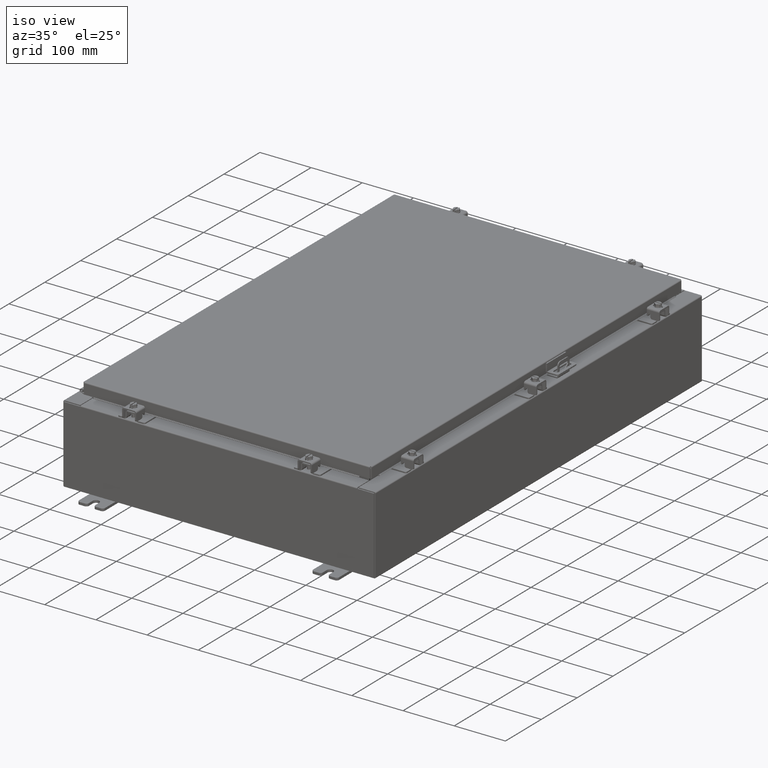
[diagram: clean part render]
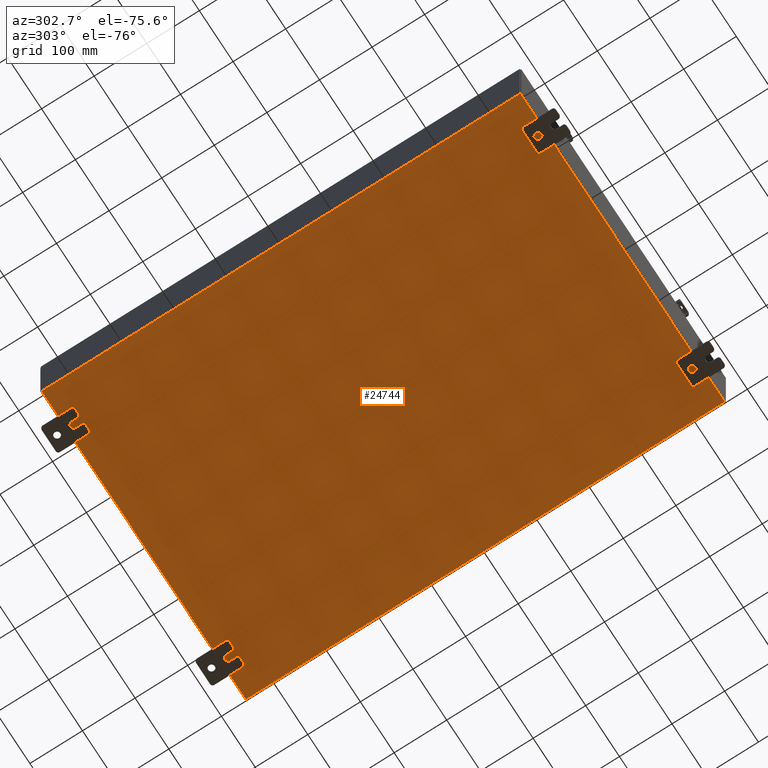
[diagram: tour spotlight — one face highlighted and labeled with its STEP entity id]
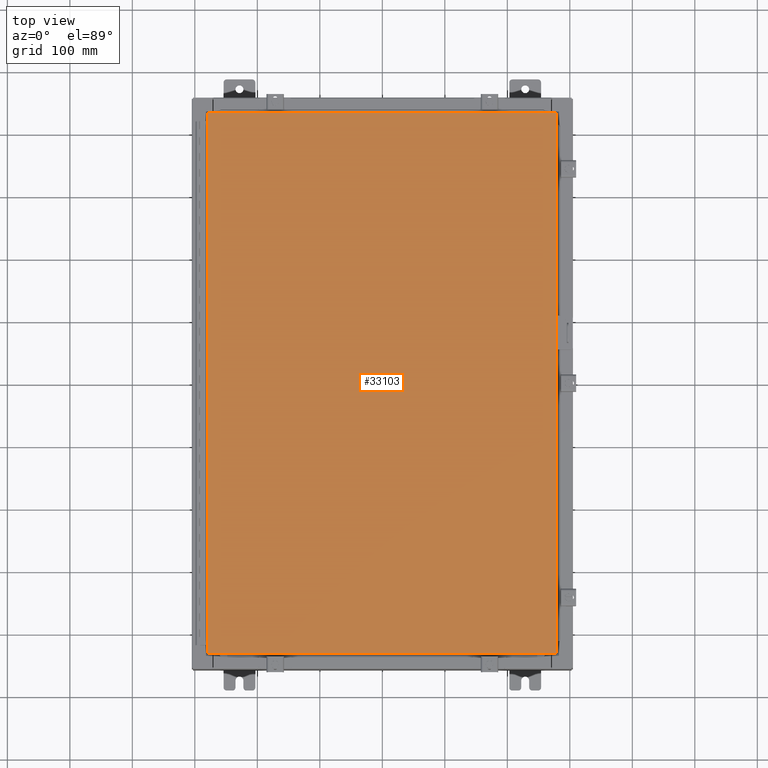
[diagram: tour spotlight — one face highlighted and labeled with its STEP entity id]
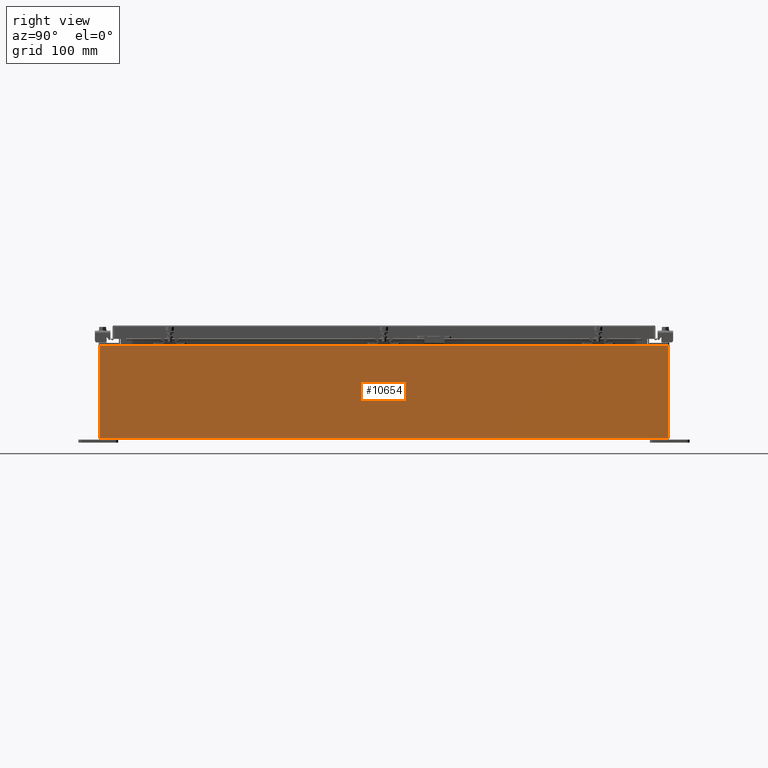
[diagram: tour spotlight — one face highlighted and labeled with its STEP entity id]
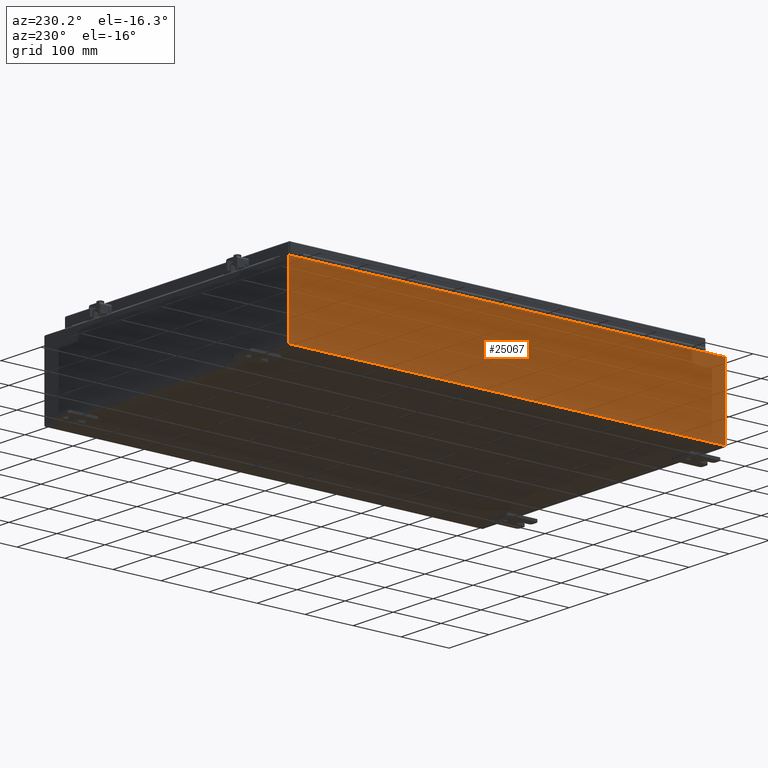
[diagram: tour spotlight — one face highlighted and labeled with its STEP entity id]
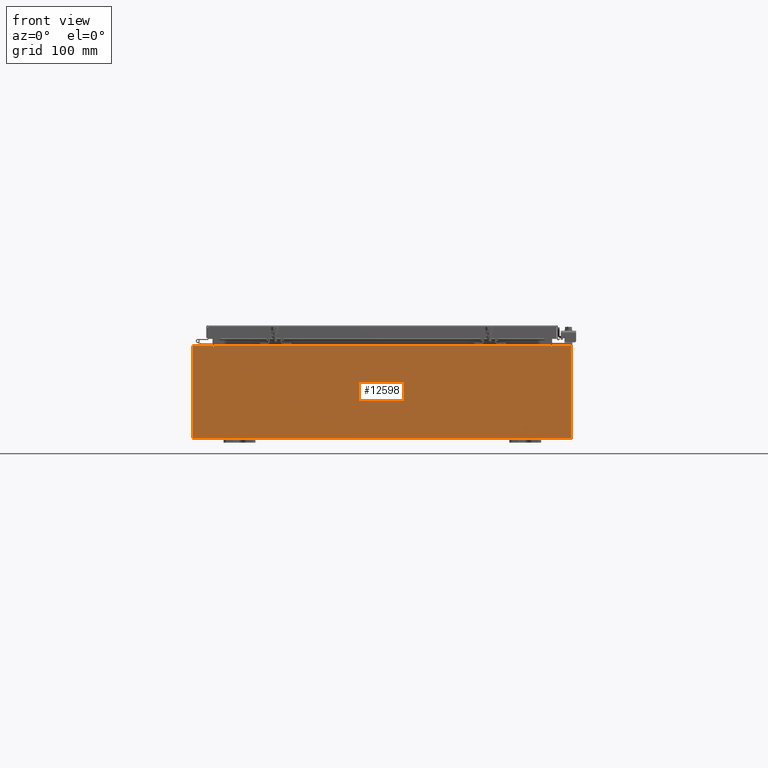
[diagram: tour spotlight — one face highlighted and labeled with its STEP entity id]
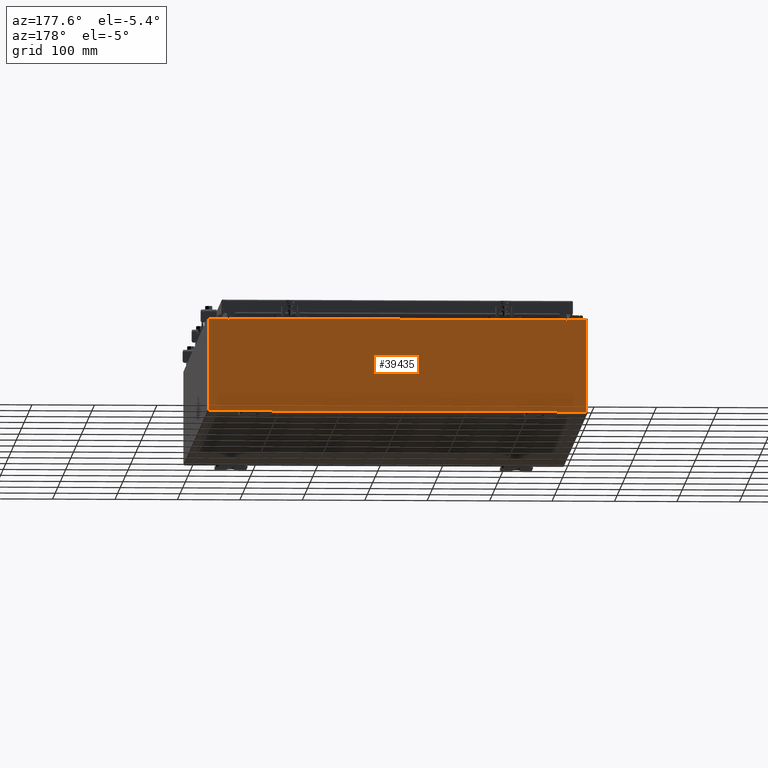
[diagram: tour spotlight — one face highlighted and labeled with its STEP entity id]
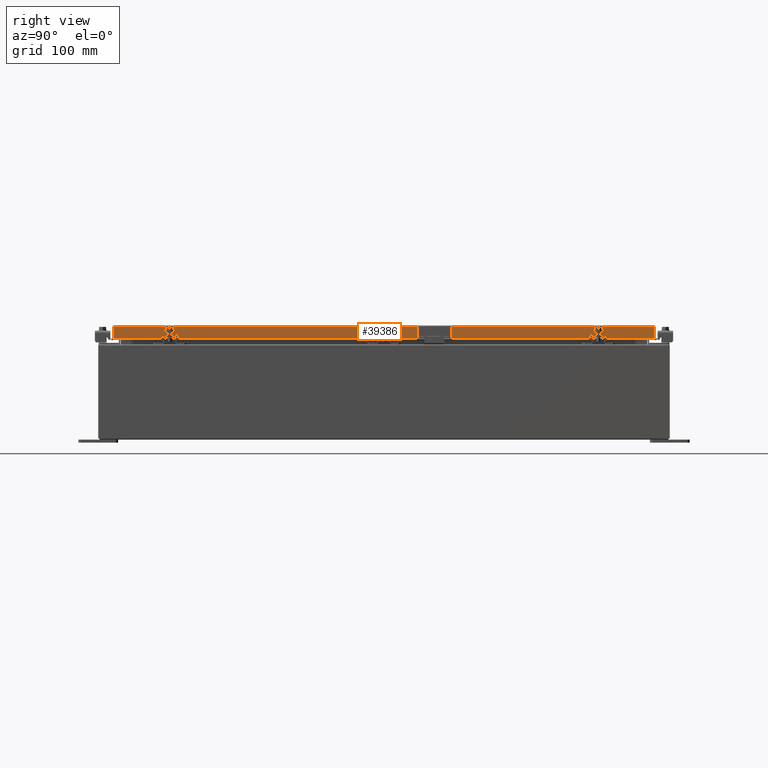
[diagram: tour spotlight — one face highlighted and labeled with its STEP entity id]
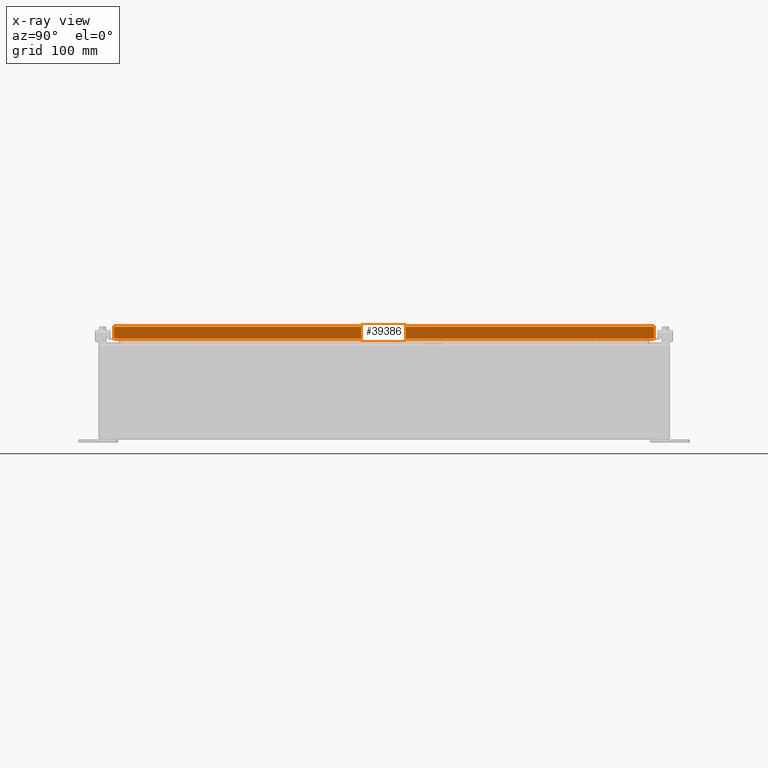
[diagram: x-ray of the same camera — body ghosted, this tour face saturated]
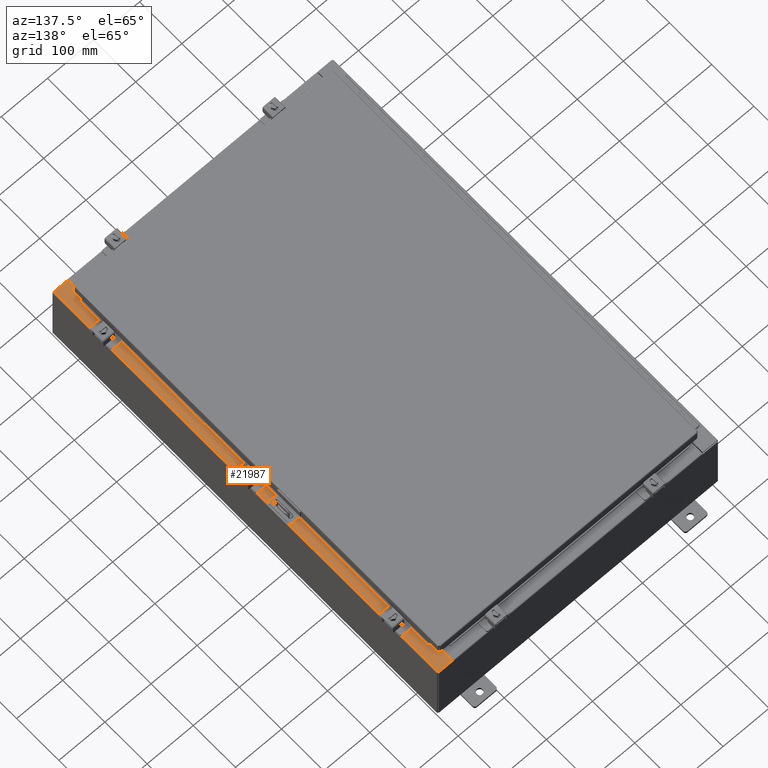
[diagram: tour spotlight — one face highlighted and labeled with its STEP entity id]
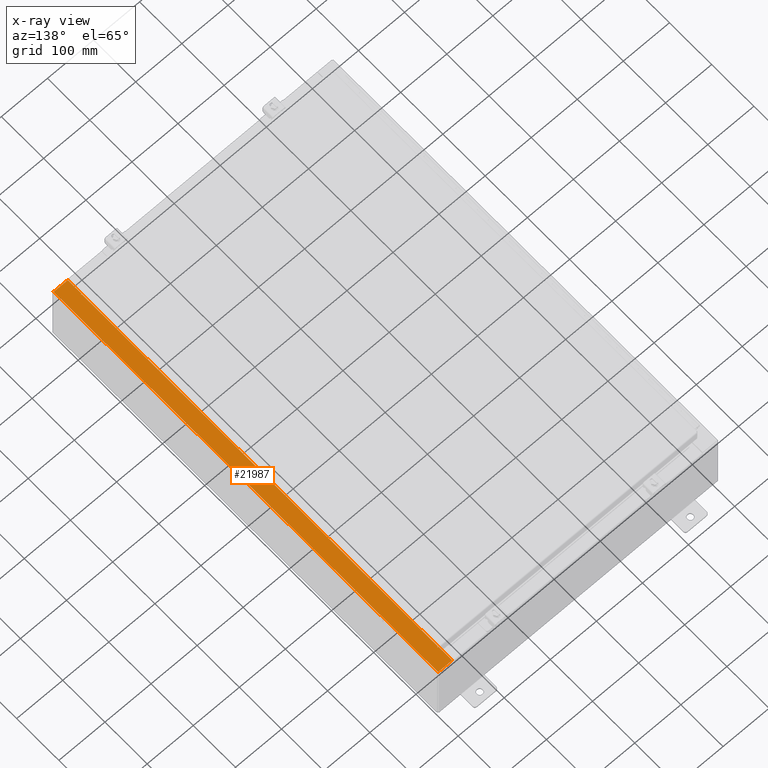
[diagram: x-ray of the same camera — body ghosted, this tour face saturated]
A machine part: a face-by-face anatomy tour. The part has 2210 B-rep faces; the first image is the clean iso view, then the 8 largest visible faces are spotlighted one at a time (largest first), each with its STEP entity span.

Face 1 — auxiliary view, entity #24744. In plain terms, the highlighted planar face has unit normal (0, 0, -1).
Definition (entity closure, byte-faithful):
#1006 = CARTESIAN_POINT ( 'NONE',  ( 11.91230000000000000, 17.92529999999999600, -0.07469999999999885100 ) ) ;
#6571 = CARTESIAN_POINT ( 'NONE',  ( 11.91230000000000000, 17.92529999999999600, -0.07469999999999885100 ) ) ;
#6612 = CARTESIAN_POINT ( 'NONE',  ( 11.91229999999999100, -17.92530000000000400, -0.07470000000000000300 ) ) ;
#7268 = VERTEX_POINT ( 'NONE', #38242 ) ;
#9078 = CARTESIAN_POINT ( 'NONE',  ( 0.0000000000000000000, 0.0000000000000000000, -0.07470000000000000300 ) ) ;
#9370 = DIRECTION ( 'NONE',  ( 0.0000000000000000000, 0.0000000000000000000, -1.000000000000000000 ) ) ;
#9558 = EDGE_CURVE ( 'NONE', #7268, #18556, #28793, .T. ) ;
#9627 = EDGE_CURVE ( 'NONE', #24223, #37639, #24693, .T. ) ;
#11630 = ORIENTED_EDGE ( 'NONE', *, *, #9558, .F. ) ;
#12046 = CARTESIAN_POINT ( 'NONE',  ( -12.00000000000000200, -17.92530000000000400, -0.07470000000000000300 ) ) ;
#14176 = PLANE ( 'NONE',  #31706 ) ;
#14462 = EDGE_LOOP ( 'NONE', ( #11630, #40599, #24168, #17702 ) ) ;
#15183 = DIRECTION ( 'NONE',  ( 1.000000000000000000, 0.0000000000000000000, 0.0000000000000000000 ) ) ;
#16113 = LINE ( 'NONE', #20793, #39114 ) ;
#17193 = EDGE_CURVE ( 'NONE', #24223, #18556, #28892, .T. ) ;
#17702 = ORIENTED_EDGE ( 'NONE', *, *, #17193, .T. ) ;
#18556 = VERTEX_POINT ( 'NONE', #6612 ) ;
#19870 = EDGE_CURVE ( 'NONE', #7268, #37639, #16113, .T. ) ;
#20793 = CARTESIAN_POINT ( 'NONE',  ( -11.91230000000000000, -17.92530000000000400, -0.07469999999999994700 ) ) ;
#22133 = CARTESIAN_POINT ( 'NONE',  ( -12.00000000000000200, 17.92529999999999600, -0.07470000000000000300 ) ) ;
#23180 = DIRECTION ( 'NONE',  ( -1.000000000000000000, -0.0000000000000000000, -0.0000000000000000000 ) ) ;
#24168 = ORIENTED_EDGE ( 'NONE', *, *, #9627, .F. ) ;
#24223 = VERTEX_POINT ( 'NONE', #6571 ) ;
#24297 = VECTOR ( 'NONE', #23180, 39.37007874015748100 ) ;
#24693 = LINE ( 'NONE', #22133, #24297 ) ;
#24744 = ADVANCED_FACE ( 'NONE', ( #35718 ), #14176, .T. ) ;
#27503 = VECTOR ( 'NONE', #15183, 39.37007874015748100 ) ;
#28793 = LINE ( 'NONE', #12046, #27503 ) ;
#28892 = LINE ( 'NONE', #1006, #32690 ) ;
#31332 = DIRECTION ( 'NONE',  ( -0.0000000000000000000, -1.000000000000000000, -0.0000000000000000000 ) ) ;
#31706 = AXIS2_PLACEMENT_3D ( 'NONE', #9078, #9370, #35928 ) ;
#32690 = VECTOR ( 'NONE', #31332, 39.37007874015748100 ) ;
#35718 = FACE_OUTER_BOUND ( 'NONE', #14462, .T. ) ;
#35928 = DIRECTION ( 'NONE',  ( -1.000000000000000000, 0.0000000000000000000, -0.0000000000000000000 ) ) ;
#37639 = VERTEX_POINT ( 'NONE', #42627 ) ;
#38242 = CARTESIAN_POINT ( 'NONE',  ( -11.91230000000000000, -17.92530000000000400, -0.07469999999999994700 ) ) ;
#38750 = DIRECTION ( 'NONE',  ( -0.0000000000000000000, 1.000000000000000000, -0.0000000000000000000 ) ) ;
#39114 = VECTOR ( 'NONE', #38750, 39.37007874015748100 ) ;
#40599 = ORIENTED_EDGE ( 'NONE', *, *, #19870, .T. ) ;
#42627 = CARTESIAN_POINT ( 'NONE',  ( -11.91230000000000000, 17.92529999999999600, -0.07470000000000000300 ) ) ;

Face 2 — top view, entity #33103. In plain terms, the highlighted planar face has unit normal (0, 0, -1).
Definition (entity closure, byte-faithful):
#829 = DIRECTION ( 'NONE',  ( -1.000000000000000000, -0.0000000000000000000, -0.0000000000000000000 ) ) ;
#3289 = VERTEX_POINT ( 'NONE', #8541 ) ;
#3576 = CARTESIAN_POINT ( 'NONE',  ( 10.99029999999999800, 17.00630000000000700, -2.048885995248197400E-016 ) ) ;
#5041 = DIRECTION ( 'NONE',  ( 0.0000000000000000000, 0.0000000000000000000, -1.000000000000000000 ) ) ;
#5778 = VECTOR ( 'NONE', #24230, 39.37007874015748100 ) ;
#7512 = CARTESIAN_POINT ( 'NONE',  ( 10.99029999999999800, 17.00630000000000700, -2.048885995248197400E-016 ) ) ;
#7973 = AXIS2_PLACEMENT_3D ( 'NONE', #37892, #5041, #28054 ) ;
#8541 = CARTESIAN_POINT ( 'NONE',  ( 10.99029999999999600, -17.00629999999999200, -2.048885995248197400E-016 ) ) ;
#11119 = DIRECTION ( 'NONE',  ( 0.0000000000000000000, 1.000000000000000000, 0.0000000000000000000 ) ) ;
#11429 = DIRECTION ( 'NONE',  ( 0.0000000000000000000, -1.000000000000000000, 0.0000000000000000000 ) ) ;
#11764 = VERTEX_POINT ( 'NONE', #38637 ) ;
#11875 = ORIENTED_EDGE ( 'NONE', *, *, #18634, .T. ) ;
#12093 = VERTEX_POINT ( 'NONE', #3576 ) ;
#14240 = CARTESIAN_POINT ( 'NONE',  ( -10.99030000000000000, -17.00629999999999600, 8.878505979408856000E-016 ) ) ;
#18634 = EDGE_CURVE ( 'NONE', #25031, #3289, #34046, .T. ) ;
#19269 = VECTOR ( 'NONE', #11429, 39.37007874015748100 ) ;
#20294 = LINE ( 'NONE', #24301, #19269 ) ;
#20979 = EDGE_CURVE ( 'NONE', #3289, #12093, #33123, .T. ) ;
#21486 = FACE_OUTER_BOUND ( 'NONE', #26720, .T. ) ;
#23540 = VECTOR ( 'NONE', #829, 39.37007874015748100 ) ;
#24230 = DIRECTION ( 'NONE',  ( 1.000000000000000000, -0.0000000000000000000, -0.0000000000000000000 ) ) ;
#24301 = CARTESIAN_POINT ( 'NONE',  ( -10.99030000000000500, 17.00630000000000700, -3.483106191921935600E-015 ) ) ;
#24726 = PLANE ( 'NONE',  #7973 ) ;
#25031 = VERTEX_POINT ( 'NONE', #14240 ) ;
#26720 = EDGE_LOOP ( 'NONE', ( #11875, #31440, #29303, #26990 ) ) ;
#26990 = ORIENTED_EDGE ( 'NONE', *, *, #42470, .T. ) ;
#27952 = CARTESIAN_POINT ( 'NONE',  ( -10.99030000000000000, -17.00629999999999600, 8.878505979408856000E-016 ) ) ;
#28054 = DIRECTION ( 'NONE',  ( -1.000000000000000000, 0.0000000000000000000, -0.0000000000000000000 ) ) ;
#29303 = ORIENTED_EDGE ( 'NONE', *, *, #33027, .T. ) ;
#31070 = CARTESIAN_POINT ( 'NONE',  ( 10.99029999999999600, -17.00629999999999200, -2.048885995248197400E-016 ) ) ;
#31440 = ORIENTED_EDGE ( 'NONE', *, *, #20979, .T. ) ;
#33027 = EDGE_CURVE ( 'NONE', #12093, #11764, #33243, .T. ) ;
#33103 = ADVANCED_FACE ( 'NONE', ( #21486 ), #24726, .F. ) ;
#33123 = LINE ( 'NONE', #31070, #37737 ) ;
#33243 = LINE ( 'NONE', #7512, #23540 ) ;
#34046 = LINE ( 'NONE', #27952, #5778 ) ;
#37737 = VECTOR ( 'NONE', #11119, 39.37007874015748100 ) ;
#37892 = CARTESIAN_POINT ( 'NONE',  ( 0.0000000000000000000, 0.0000000000000000000, 0.0000000000000000000 ) ) ;
#38637 = CARTESIAN_POINT ( 'NONE',  ( -10.99030000000000500, 17.00630000000000700, -3.483106191921935600E-015 ) ) ;
#42470 = EDGE_CURVE ( 'NONE', #11764, #25031, #20294, .T. ) ;

Face 3 — right view, entity #10654. In plain terms, the highlighted planar face has unit normal (-1, 0, 0).
Definition (entity closure, byte-faithful):
#573 = VECTOR ( 'NONE', #34278, 39.37007874015748100 ) ;
#2578 = ORIENTED_EDGE ( 'NONE', *, *, #11067, .T. ) ;
#2586 = ORIENTED_EDGE ( 'NONE', *, *, #21550, .T. ) ;
#7472 = LINE ( 'NONE', #10014, #573 ) ;
#9693 = EDGE_CURVE ( 'NONE', #41324, #9951, #7472, .T. ) ;
#9951 = VERTEX_POINT ( 'NONE', #20863 ) ;
#10014 = CARTESIAN_POINT ( 'NONE',  ( 12.00000000000000200, 17.92529999999999600, -4.009536492811464800E-014 ) ) ;
#10654 = ADVANCED_FACE ( 'NONE', ( #14635 ), #42233, .F. ) ;
#11067 = EDGE_CURVE ( 'NONE', #38027, #23221, #42629, .T. ) ;
#11687 = CARTESIAN_POINT ( 'NONE',  ( 12.00000000000002100, -17.92530000000000000, 5.837600000000001000 ) ) ;
#12805 = LINE ( 'NONE', #23617, #34899 ) ;
#14004 = ORIENTED_EDGE ( 'NONE', *, *, #35465, .F. ) ;
#14635 = FACE_OUTER_BOUND ( 'NONE', #41359, .T. ) ;
#15163 = CARTESIAN_POINT ( 'NONE',  ( 12.00000000000000200, 17.92529999999999600, 0.01300000000000205000 ) ) ;
#20361 = VECTOR ( 'NONE', #30296, 39.37007874015748100 ) ;
#20423 = VECTOR ( 'NONE', #29426, 39.37007874015748100 ) ;
#20863 = CARTESIAN_POINT ( 'NONE',  ( 12.00000000000002100, 17.92530000000000000, 5.837600000000001000 ) ) ;
#21275 = DIRECTION ( 'NONE',  ( -0.0000000000000000000, -1.000000000000000000, -0.0000000000000000000 ) ) ;
#21550 = EDGE_CURVE ( 'NONE', #9951, #38027, #12805, .T. ) ;
#23221 = VERTEX_POINT ( 'NONE', #34125 ) ;
#23617 = CARTESIAN_POINT ( 'NONE',  ( 12.00000000000002100, 17.92530000000000000, 5.837600000000001000 ) ) ;
#28094 = AXIS2_PLACEMENT_3D ( 'NONE', #42365, #41223, #41256 ) ;
#28114 = LINE ( 'NONE', #39375, #20423 ) ;
#28783 = ORIENTED_EDGE ( 'NONE', *, *, #9693, .T. ) ;
#29426 = DIRECTION ( 'NONE',  ( -2.023619111371655800E-031, -1.000000000000000000, -6.096072018129156600E-017 ) ) ;
#30296 = DIRECTION ( 'NONE',  ( -3.319545939341922800E-015, 0.0000000000000000000, -1.000000000000000000 ) ) ;
#30489 = CARTESIAN_POINT ( 'NONE',  ( 12.00000000000000200, -17.92530000000000400, -4.009536492811464800E-014 ) ) ;
#34125 = CARTESIAN_POINT ( 'NONE',  ( 12.00000000000000200, -17.92530000000000400, 0.01300000000000095200 ) ) ;
#34278 = DIRECTION ( 'NONE',  ( 3.319545939341922800E-015, 0.0000000000000000000, 1.000000000000000000 ) ) ;
#34899 = VECTOR ( 'NONE', #21275, 39.37007874015748100 ) ;
#35465 = EDGE_CURVE ( 'NONE', #41324, #23221, #28114, .T. ) ;
#38027 = VERTEX_POINT ( 'NONE', #11687 ) ;
#39375 = CARTESIAN_POINT ( 'NONE',  ( 12.00000000000000200, -17.92530000000000400, 0.01299999999999986400 ) ) ;
#41223 = DIRECTION ( 'NONE',  ( -1.000000000000000000, 0.0000000000000000000, 3.319545939341922000E-015 ) ) ;
#41256 = DIRECTION ( 'NONE',  ( 3.319545939341922000E-015, 0.0000000000000000000, 1.000000000000000000 ) ) ;
#41324 = VERTEX_POINT ( 'NONE', #15163 ) ;
#41359 = EDGE_LOOP ( 'NONE', ( #2586, #2578, #14004, #28783 ) ) ;
#42233 = PLANE ( 'NONE',  #28094 ) ;
#42365 = CARTESIAN_POINT ( 'NONE',  ( 12.00000000000000200, 0.0000000000000000000, -4.009536492811464800E-014 ) ) ;
#42629 = LINE ( 'NONE', #30489, #20361 ) ;

Face 4 — auxiliary view, entity #25067. In plain terms, the highlighted planar face has unit normal (1, 0, 0).
Definition (entity closure, byte-faithful):
#58 = EDGE_LOOP ( 'NONE', ( #37076, #4828, #8268, #21557 ) ) ;
#3659 = VECTOR ( 'NONE', #9107, 39.37007874015748100 ) ;
#3842 = DIRECTION ( 'NONE',  ( -0.0000000000000000000, 1.000000000000000000, -0.0000000000000000000 ) ) ;
#4111 = VECTOR ( 'NONE', #24432, 39.37007874015748100 ) ;
#4368 = DIRECTION ( 'NONE',  ( 1.000000000000000000, 0.0000000000000000000, 3.319545939341922800E-015 ) ) ;
#4828 = ORIENTED_EDGE ( 'NONE', *, *, #22271, .T. ) ;
#7034 = CARTESIAN_POINT ( 'NONE',  ( -12.00000000000000200, 17.92529999999999600, 0.01299999999999986400 ) ) ;
#8268 = ORIENTED_EDGE ( 'NONE', *, *, #37752, .F. ) ;
#8946 = CARTESIAN_POINT ( 'NONE',  ( -12.00000000000000200, -17.92530000000000400, -4.009536492811464800E-014 ) ) ;
#9107 = DIRECTION ( 'NONE',  ( -3.319545939341922800E-015, 0.0000000000000000000, 1.000000000000000000 ) ) ;
#9898 = EDGE_CURVE ( 'NONE', #33036, #19318, #28826, .T. ) ;
#10260 = EDGE_CURVE ( 'NONE', #38929, #33036, #27739, .T. ) ;
#11313 = CARTESIAN_POINT ( 'NONE',  ( -12.00000000000002100, -17.92530000000000400, 5.837599999999999200 ) ) ;
#12423 = VECTOR ( 'NONE', #15731, 39.37007874015748100 ) ;
#14953 = DIRECTION ( 'NONE',  ( 3.319545939341922800E-015, 0.0000000000000000000, -1.000000000000000000 ) ) ;
#15731 = DIRECTION ( 'NONE',  ( 3.319545939341922800E-015, 0.0000000000000000000, -1.000000000000000000 ) ) ;
#16468 = CARTESIAN_POINT ( 'NONE',  ( -12.00000000000000200, 17.92529999999999600, -4.009536492811464800E-014 ) ) ;
#17157 = VECTOR ( 'NONE', #3842, 39.37007874015748100 ) ;
#18534 = LINE ( 'NONE', #16468, #12423 ) ;
#19318 = VERTEX_POINT ( 'NONE', #26913 ) ;
#21557 = ORIENTED_EDGE ( 'NONE', *, *, #10260, .T. ) ;
#22271 = EDGE_CURVE ( 'NONE', #19318, #36749, #18534, .T. ) ;
#22395 = AXIS2_PLACEMENT_3D ( 'NONE', #25420, #4368, #14953 ) ;
#23909 = CARTESIAN_POINT ( 'NONE',  ( -12.00000000000002100, -17.92530000000000400, 5.837599999999999200 ) ) ;
#24432 = DIRECTION ( 'NONE',  ( 0.0000000000000000000, 1.000000000000000000, 0.0000000000000000000 ) ) ;
#25067 = ADVANCED_FACE ( 'NONE', ( #35762 ), #38549, .F. ) ;
#25420 = CARTESIAN_POINT ( 'NONE',  ( -12.00000000000000200, 0.0000000000000000000, -4.009536492811464800E-014 ) ) ;
#25833 = LINE ( 'NONE', #7034, #17157 ) ;
#26913 = CARTESIAN_POINT ( 'NONE',  ( -12.00000000000002100, 17.92529999999999600, 5.837599999999999200 ) ) ;
#27618 = CARTESIAN_POINT ( 'NONE',  ( -12.00000000000000200, 17.92529999999999600, 0.01299999999999985900 ) ) ;
#27739 = LINE ( 'NONE', #8946, #3659 ) ;
#28826 = LINE ( 'NONE', #11313, #4111 ) ;
#33036 = VERTEX_POINT ( 'NONE', #23909 ) ;
#35762 = FACE_OUTER_BOUND ( 'NONE', #58, .T. ) ;
#36749 = VERTEX_POINT ( 'NONE', #27618 ) ;
#37076 = ORIENTED_EDGE ( 'NONE', *, *, #9898, .T. ) ;
#37752 = EDGE_CURVE ( 'NONE', #38929, #36749, #25833, .T. ) ;
#38549 = PLANE ( 'NONE',  #22395 ) ;
#38929 = VERTEX_POINT ( 'NONE', #38947 ) ;
#38947 = CARTESIAN_POINT ( 'NONE',  ( -12.00000000000000200, -17.92530000000000400, 0.01299999999999986400 ) ) ;

Face 5 — front view, entity #12598. In plain terms, the highlighted planar face has unit normal (-0, 1, -0).
Definition (entity closure, byte-faithful):
#93 = ORIENTED_EDGE ( 'NONE', *, *, #21419, .F. ) ;
#513 = EDGE_CURVE ( 'NONE', #23962, #17599, #36454, .T. ) ;
#1476 = CARTESIAN_POINT ( 'NONE',  ( -11.92530000000000000, 0.0000000000000000000, 2.925300000000000500 ) ) ;
#1503 = EDGE_CURVE ( 'NONE', #7274, #26329, #41527, .T. ) ;
#1679 = CARTESIAN_POINT ( 'NONE',  ( 10.63720000000000400, 0.0000000000000000000, 0.0000000000000000000 ) ) ;
#2926 = DIRECTION ( 'NONE',  ( 1.000000000000000000, 0.0000000000000000000, 0.0000000000000000000 ) ) ;
#2946 = DIRECTION ( 'NONE',  ( -4.340572780400004900E-014, 0.0000000000000000000, -1.000000000000000000 ) ) ;
#3123 = CIRCLE ( 'NONE', #34839, 0.01867499999999949400 ) ;
#3890 = EDGE_CURVE ( 'NONE', #17599, #42417, #40922, .T. ) ;
#3924 = EDGE_CURVE ( 'NONE', #42417, #12419, #6290, .T. ) ;
#4340 = FACE_OUTER_BOUND ( 'NONE', #14956, .T. ) ;
#4485 = ORIENTED_EDGE ( 'NONE', *, *, #21254, .T. ) ;
#5640 = ORIENTED_EDGE ( 'NONE', *, *, #8983, .F. ) ;
#5648 = EDGE_CURVE ( 'NONE', #40485, #34425, #41163, .T. ) ;
#6071 = ORIENTED_EDGE ( 'NONE', *, *, #3890, .T. ) ;
#6290 = LINE ( 'NONE', #1476, #17759 ) ;
#6477 = AXIS2_PLACEMENT_3D ( 'NONE', #6906, #12233, #41385 ) ;
#6753 = CIRCLE ( 'NONE', #6477, 0.01867499999999949400 ) ;
#6906 = CARTESIAN_POINT ( 'NONE',  ( 10.65587500000000200, 0.0000000000000000000, 2.874950000000000600 ) ) ;
#7274 = VERTEX_POINT ( 'NONE', #38139 ) ;
#7520 = CARTESIAN_POINT ( 'NONE',  ( -10.65587500000000200, 0.0000000000000000000, 2.874950000000000600 ) ) ;
#7889 = CARTESIAN_POINT ( 'NONE',  ( -10.63720000000000400, -0.0000000000000000000, 2.874950000000000600 ) ) ;
#7998 = ORIENTED_EDGE ( 'NONE', *, *, #1503, .F. ) ;
#8309 = VECTOR ( 'NONE', #2946, 39.37007874015748100 ) ;
#8889 = VECTOR ( 'NONE', #2926, 39.37007874015748100 ) ;
#8983 = EDGE_CURVE ( 'NONE', #11201, #12419, #12595, .T. ) ;
#10052 = PLANE ( 'NONE',  #28205 ) ;
#11201 = VERTEX_POINT ( 'NONE', #25275 ) ;
#12233 = DIRECTION ( 'NONE',  ( -0.0000000000000000000, 1.000000000000000000, -0.0000000000000000000 ) ) ;
#12419 = VERTEX_POINT ( 'NONE', #42604 ) ;
#12595 = LINE ( 'NONE', #14874, #14139 ) ;
#12598 = ADVANCED_FACE ( 'NONE', ( #4340 ), #10052, .F. ) ;
#12775 = CARTESIAN_POINT ( 'NONE',  ( 11.92530000000000000, 0.0000000000000000000, -2.925299999999999600 ) ) ;
#13294 = VERTEX_POINT ( 'NONE', #16031 ) ;
#13601 = DIRECTION ( 'NONE',  ( 0.0000000000000000000, 0.0000000000000000000, -1.000000000000000000 ) ) ;
#14139 = VECTOR ( 'NONE', #40179, 39.37007874015748100 ) ;
#14284 = ORIENTED_EDGE ( 'NONE', *, *, #29317, .F. ) ;
#14309 = CARTESIAN_POINT ( 'NONE',  ( -11.92530000000000000, 0.0000000000000000000, 2.925300000000000500 ) ) ;
#14524 = LINE ( 'NONE', #19912, #40646 ) ;
#14871 = CARTESIAN_POINT ( 'NONE',  ( 10.63720000000000400, 0.0000000000000000000, 2.912300000000000600 ) ) ;
#14874 = CARTESIAN_POINT ( 'NONE',  ( -10.67455000000000200, -0.0000000000000000000, 0.0000000000000000000 ) ) ;
#14956 = EDGE_LOOP ( 'NONE', ( #5640, #33826, #7998, #4485, #14284, #30170, #93, #18536, #32032, #20956, #6071, #27159 ) ) ;
#15318 = VERTEX_POINT ( 'NONE', #20015 ) ;
#15628 = DIRECTION ( 'NONE',  ( 0.0000000000000000000, 0.0000000000000000000, -1.000000000000000000 ) ) ;
#15892 = VECTOR ( 'NONE', #34466, 39.37007874015748100 ) ;
#16031 = CARTESIAN_POINT ( 'NONE',  ( 10.63720000000000400, 0.0000000000000000000, 2.874950000000000600 ) ) ;
#17599 = VERTEX_POINT ( 'NONE', #18158 ) ;
#17691 = DIRECTION ( 'NONE',  ( -0.0000000000000000000, -0.0000000000000000000, 1.000000000000000000 ) ) ;
#17759 = VECTOR ( 'NONE', #32569, 39.37007874015748100 ) ;
#18158 = CARTESIAN_POINT ( 'NONE',  ( -11.92530000000000000, 0.0000000000000000000, -2.925299999999999600 ) ) ;
#18536 = ORIENTED_EDGE ( 'NONE', *, *, #5648, .T. ) ;
#19144 = LINE ( 'NONE', #35124, #20174 ) ;
#19912 = CARTESIAN_POINT ( 'NONE',  ( -10.63720000000000400, 1.024442997624098700E-016, 2.912300000000000600 ) ) ;
#20015 = CARTESIAN_POINT ( 'NONE',  ( 10.67455000000000200, 0.0000000000000000000, 2.874950000000000600 ) ) ;
#20044 = CARTESIAN_POINT ( 'NONE',  ( -10.63720000000000400, -0.0000000000000000000, 0.0000000000000000000 ) ) ;
#20174 = VECTOR ( 'NONE', #13601, 39.37007874015748100 ) ;
#20757 = DIRECTION ( 'NONE',  ( 0.0000000000000000000, -1.000000000000000000, 0.0000000000000000000 ) ) ;
#20956 = ORIENTED_EDGE ( 'NONE', *, *, #513, .T. ) ;
#20980 = EDGE_CURVE ( 'NONE', #15318, #13294, #6753, .T. ) ;
#21100 = EDGE_CURVE ( 'NONE', #26329, #11201, #3123, .T. ) ;
#21254 = EDGE_CURVE ( 'NONE', #7274, #41253, #14524, .T. ) ;
#21419 = EDGE_CURVE ( 'NONE', #40485, #15318, #24305, .T. ) ;
#23330 = CARTESIAN_POINT ( 'NONE',  ( 10.67454999999987700, -0.0000000000000000000, -4.633366117301834200E-013 ) ) ;
#23962 = VERTEX_POINT ( 'NONE', #12775 ) ;
#24305 = LINE ( 'NONE', #23330, #8309 ) ;
#25275 = CARTESIAN_POINT ( 'NONE',  ( -10.67455000000000200, 0.0000000000000000000, 2.874950000000000600 ) ) ;
#25286 = VECTOR ( 'NONE', #28926, 39.37007874015748100 ) ;
#25677 = DIRECTION ( 'NONE',  ( 1.000000000000000000, 0.0000000000000000000, 0.0000000000000000000 ) ) ;
#26216 = VECTOR ( 'NONE', #26904, 39.37007874015748100 ) ;
#26329 = VERTEX_POINT ( 'NONE', #7889 ) ;
#26904 = DIRECTION ( 'NONE',  ( 0.0000000000000000000, 0.0000000000000000000, -1.000000000000000000 ) ) ;
#27159 = ORIENTED_EDGE ( 'NONE', *, *, #3924, .T. ) ;
#27631 = CARTESIAN_POINT ( 'NONE',  ( 11.92530000000000000, 0.0000000000000000000, 2.925300000000000500 ) ) ;
#28205 = AXIS2_PLACEMENT_3D ( 'NONE', #39189, #20757, #36503 ) ;
#28261 = VECTOR ( 'NONE', #17691, 39.37007874015748100 ) ;
#28926 = DIRECTION ( 'NONE',  ( 0.0000000000000000000, 0.0000000000000000000, 1.000000000000000000 ) ) ;
#29317 = EDGE_CURVE ( 'NONE', #13294, #41253, #33985, .T. ) ;
#29572 = EDGE_CURVE ( 'NONE', #34425, #23962, #19144, .T. ) ;
#30013 = CARTESIAN_POINT ( 'NONE',  ( -11.92530000000000000, 0.0000000000000000000, 2.925300000000000500 ) ) ;
#30170 = ORIENTED_EDGE ( 'NONE', *, *, #20980, .F. ) ;
#30778 = CARTESIAN_POINT ( 'NONE',  ( 10.67455000000000200, 0.0000000000000000000, 2.925300000000000500 ) ) ;
#32032 = ORIENTED_EDGE ( 'NONE', *, *, #29572, .T. ) ;
#32347 = DIRECTION ( 'NONE',  ( -0.0000000000000000000, 1.000000000000000000, -0.0000000000000000000 ) ) ;
#32569 = DIRECTION ( 'NONE',  ( 1.000000000000000000, 0.0000000000000000000, 0.0000000000000000000 ) ) ;
#32723 = CARTESIAN_POINT ( 'NONE',  ( -11.92530000000000000, 0.0000000000000000000, -2.925299999999999600 ) ) ;
#33826 = ORIENTED_EDGE ( 'NONE', *, *, #21100, .F. ) ;
#33985 = LINE ( 'NONE', #1679, #25286 ) ;
#34425 = VERTEX_POINT ( 'NONE', #27631 ) ;
#34466 = DIRECTION ( 'NONE',  ( -1.000000000000000000, -0.0000000000000000000, -0.0000000000000000000 ) ) ;
#34839 = AXIS2_PLACEMENT_3D ( 'NONE', #7520, #32347, #15628 ) ;
#35124 = CARTESIAN_POINT ( 'NONE',  ( 11.92530000000000000, 0.0000000000000000000, 2.925300000000000500 ) ) ;
#35265 = CARTESIAN_POINT ( 'NONE',  ( -11.92530000000000000, 0.0000000000000000000, 2.925300000000000500 ) ) ;
#36454 = LINE ( 'NONE', #32723, #15892 ) ;
#36503 = DIRECTION ( 'NONE',  ( 0.0000000000000000000, -0.0000000000000000000, -1.000000000000000000 ) ) ;
#38139 = CARTESIAN_POINT ( 'NONE',  ( -10.63720000000000400, 1.024442997624098700E-016, 2.912300000000000600 ) ) ;
#39189 = CARTESIAN_POINT ( 'NONE',  ( 0.0000000000000000000, 0.0000000000000000000, 0.0000000000000000000 ) ) ;
#40179 = DIRECTION ( 'NONE',  ( 0.0000000000000000000, 0.0000000000000000000, 1.000000000000000000 ) ) ;
#40485 = VERTEX_POINT ( 'NONE', #30778 ) ;
#40646 = VECTOR ( 'NONE', #25677, 39.37007874015748100 ) ;
#40922 = LINE ( 'NONE', #30013, #28261 ) ;
#41163 = LINE ( 'NONE', #35265, #8889 ) ;
#41253 = VERTEX_POINT ( 'NONE', #14871 ) ;
#41385 = DIRECTION ( 'NONE',  ( 0.0000000000000000000, 0.0000000000000000000, -1.000000000000000000 ) ) ;
#41527 = LINE ( 'NONE', #20044, #26216 ) ;
#42417 = VERTEX_POINT ( 'NONE', #14309 ) ;
#42604 = CARTESIAN_POINT ( 'NONE',  ( -10.67455000000000200, 0.0000000000000000000, 2.925300000000000500 ) ) ;

Face 6 — auxiliary view, entity #39435. In plain terms, the highlighted planar face has unit normal (0, -1, 0).
Definition (entity closure, byte-faithful):
#466 = CARTESIAN_POINT ( 'NONE',  ( -11.92530000000000000, 0.0000000000000000000, -2.925299999999999600 ) ) ;
#594 = EDGE_CURVE ( 'NONE', #4033, #31485, #35432, .T. ) ;
#621 = VECTOR ( 'NONE', #3238, 39.37007874015748100 ) ;
#846 = LINE ( 'NONE', #4197, #34838 ) ;
#868 = VECTOR ( 'NONE', #22628, 39.37007874015748100 ) ;
#1323 = EDGE_CURVE ( 'NONE', #34810, #5791, #32140, .T. ) ;
#1675 = CARTESIAN_POINT ( 'NONE',  ( 10.67454999999987700, -0.0000000000000000000, -4.633366117301834200E-013 ) ) ;
#2631 = CARTESIAN_POINT ( 'NONE',  ( 0.0000000000000000000, 0.0000000000000000000, 0.0000000000000000000 ) ) ;
#2704 = AXIS2_PLACEMENT_3D ( 'NONE', #30485, #10871, #33742 ) ;
#3238 = DIRECTION ( 'NONE',  ( -1.000000000000000000, -0.0000000000000000000, -0.0000000000000000000 ) ) ;
#3463 = VECTOR ( 'NONE', #41704, 39.37007874015748100 ) ;
#3771 = VERTEX_POINT ( 'NONE', #11122 ) ;
#3846 = VECTOR ( 'NONE', #13262, 39.37007874015748100 ) ;
#3876 = CARTESIAN_POINT ( 'NONE',  ( 10.67455000000000200, 0.0000000000000000000, 2.874950000000000600 ) ) ;
#4033 = VERTEX_POINT ( 'NONE', #16033 ) ;
#4120 = CARTESIAN_POINT ( 'NONE',  ( -10.63720000000000400, -0.0000000000000000000, 2.874950000000000600 ) ) ;
#4197 = CARTESIAN_POINT ( 'NONE',  ( -11.92530000000000000, 0.0000000000000000000, 2.925300000000000500 ) ) ;
#5278 = VERTEX_POINT ( 'NONE', #6417 ) ;
#5280 = ORIENTED_EDGE ( 'NONE', *, *, #40734, .F. ) ;
#5791 = VERTEX_POINT ( 'NONE', #4120 ) ;
#6088 = DIRECTION ( 'NONE',  ( 0.0000000000000000000, -0.0000000000000000000, -1.000000000000000000 ) ) ;
#6417 = CARTESIAN_POINT ( 'NONE',  ( 10.63720000000000400, 0.0000000000000000000, 2.874950000000000600 ) ) ;
#7035 = ORIENTED_EDGE ( 'NONE', *, *, #1323, .F. ) ;
#7600 = ORIENTED_EDGE ( 'NONE', *, *, #27706, .T. ) ;
#8413 = ORIENTED_EDGE ( 'NONE', *, *, #36430, .F. ) ;
#9123 = ORIENTED_EDGE ( 'NONE', *, *, #594, .T. ) ;
#9868 = ORIENTED_EDGE ( 'NONE', *, *, #16708, .T. ) ;
#9891 = ORIENTED_EDGE ( 'NONE', *, *, #21683, .T. ) ;
#10007 = ORIENTED_EDGE ( 'NONE', *, *, #22519, .F. ) ;
#10316 = ORIENTED_EDGE ( 'NONE', *, *, #33024, .F. ) ;
#10422 = ORIENTED_EDGE ( 'NONE', *, *, #31954, .T. ) ;
#10871 = DIRECTION ( 'NONE',  ( -0.0000000000000000000, 1.000000000000000000, -0.0000000000000000000 ) ) ;
#11122 = CARTESIAN_POINT ( 'NONE',  ( 10.63720000000000400, 0.0000000000000000000, 2.912300000000000600 ) ) ;
#12368 = EDGE_LOOP ( 'NONE', ( #5280, #10316, #7035, #9868, #8413, #10007, #18084, #7600, #9123, #9891, #25243, #10422 ) ) ;
#13262 = DIRECTION ( 'NONE',  ( 0.0000000000000000000, 0.0000000000000000000, 1.000000000000000000 ) ) ;
#13967 = DIRECTION ( 'NONE',  ( 0.0000000000000000000, 0.0000000000000000000, -1.000000000000000000 ) ) ;
#14668 = LINE ( 'NONE', #22907, #31011 ) ;
#14734 = LINE ( 'NONE', #19776, #3846 ) ;
#14989 = CARTESIAN_POINT ( 'NONE',  ( -11.92530000000000000, 0.0000000000000000000, -2.925299999999999600 ) ) ;
#15320 = VECTOR ( 'NONE', #18294, 39.37007874015748100 ) ;
#16033 = CARTESIAN_POINT ( 'NONE',  ( 11.92530000000000000, 0.0000000000000000000, 2.925300000000000500 ) ) ;
#16130 = CARTESIAN_POINT ( 'NONE',  ( -10.63720000000000400, 1.024442997624098700E-016, 2.912300000000000600 ) ) ;
#16708 = EDGE_CURVE ( 'NONE', #34810, #3771, #16968, .T. ) ;
#16913 = CIRCLE ( 'NONE', #2704, 0.01867499999999949400 ) ;
#16917 = VERTEX_POINT ( 'NONE', #3876 ) ;
#16968 = LINE ( 'NONE', #16130, #868 ) ;
#17183 = DIRECTION ( 'NONE',  ( -0.0000000000000000000, -0.0000000000000000000, 1.000000000000000000 ) ) ;
#17558 = CARTESIAN_POINT ( 'NONE',  ( -11.92530000000000000, 0.0000000000000000000, 2.925300000000000500 ) ) ;
#17875 = CARTESIAN_POINT ( 'NONE',  ( 11.92530000000000000, 0.0000000000000000000, 2.925300000000000500 ) ) ;
#18084 = ORIENTED_EDGE ( 'NONE', *, *, #41277, .F. ) ;
#18294 = DIRECTION ( 'NONE',  ( 0.0000000000000000000, 0.0000000000000000000, -1.000000000000000000 ) ) ;
#18914 = CARTESIAN_POINT ( 'NONE',  ( -10.67455000000000200, 0.0000000000000000000, 2.874950000000000600 ) ) ;
#19776 = CARTESIAN_POINT ( 'NONE',  ( 10.63720000000000400, 0.0000000000000000000, 0.0000000000000000000 ) ) ;
#19977 = LINE ( 'NONE', #38479, #3463 ) ;
#20104 = CARTESIAN_POINT ( 'NONE',  ( -11.92530000000000000, 0.0000000000000000000, 2.925300000000000500 ) ) ;
#21280 = VERTEX_POINT ( 'NONE', #466 ) ;
#21447 = DIRECTION ( 'NONE',  ( -4.340572780400004900E-014, 0.0000000000000000000, -1.000000000000000000 ) ) ;
#21683 = EDGE_CURVE ( 'NONE', #31485, #21280, #28539, .T. ) ;
#21936 = VECTOR ( 'NONE', #21447, 39.37007874015748100 ) ;
#22519 = EDGE_CURVE ( 'NONE', #16917, #5278, #30937, .T. ) ;
#22533 = PLANE ( 'NONE',  #26769 ) ;
#22628 = DIRECTION ( 'NONE',  ( 1.000000000000000000, 0.0000000000000000000, 0.0000000000000000000 ) ) ;
#22907 = CARTESIAN_POINT ( 'NONE',  ( -11.92530000000000000, 0.0000000000000000000, 2.925300000000000500 ) ) ;
#23803 = CARTESIAN_POINT ( 'NONE',  ( -10.67455000000000200, 0.0000000000000000000, 2.925300000000000500 ) ) ;
#24384 = CARTESIAN_POINT ( 'NONE',  ( 11.92530000000000000, 0.0000000000000000000, -2.925299999999999600 ) ) ;
#25217 = VECTOR ( 'NONE', #13967, 39.37007874015748100 ) ;
#25243 = ORIENTED_EDGE ( 'NONE', *, *, #26389, .T. ) ;
#25788 = DIRECTION ( 'NONE',  ( 0.0000000000000000000, -1.000000000000000000, 0.0000000000000000000 ) ) ;
#26167 = CARTESIAN_POINT ( 'NONE',  ( -10.63720000000000400, 1.024442997624098700E-016, 2.912300000000000600 ) ) ;
#26389 = EDGE_CURVE ( 'NONE', #21280, #38379, #34747, .T. ) ;
#26769 = AXIS2_PLACEMENT_3D ( 'NONE', #2631, #25788, #6088 ) ;
#27210 = DIRECTION ( 'NONE',  ( 1.000000000000000000, 0.0000000000000000000, 0.0000000000000000000 ) ) ;
#27706 = EDGE_CURVE ( 'NONE', #34574, #4033, #14668, .T. ) ;
#27741 = DIRECTION ( 'NONE',  ( 1.000000000000000000, 0.0000000000000000000, 0.0000000000000000000 ) ) ;
#28088 = VECTOR ( 'NONE', #17183, 39.37007874015748100 ) ;
#28539 = LINE ( 'NONE', #14989, #621 ) ;
#28986 = VERTEX_POINT ( 'NONE', #18914 ) ;
#30485 = CARTESIAN_POINT ( 'NONE',  ( -10.65587500000000200, 0.0000000000000000000, 2.874950000000000600 ) ) ;
#30937 = CIRCLE ( 'NONE', #38500, 0.01867499999999949400 ) ;
#31011 = VECTOR ( 'NONE', #27741, 39.37007874015748100 ) ;
#31485 = VERTEX_POINT ( 'NONE', #24384 ) ;
#31954 = EDGE_CURVE ( 'NONE', #38379, #40346, #846, .T. ) ;
#32140 = LINE ( 'NONE', #35933, #25217 ) ;
#33024 = EDGE_CURVE ( 'NONE', #5791, #28986, #16913, .T. ) ;
#33228 = DIRECTION ( 'NONE',  ( 0.0000000000000000000, 0.0000000000000000000, -1.000000000000000000 ) ) ;
#33742 = DIRECTION ( 'NONE',  ( 0.0000000000000000000, 0.0000000000000000000, -1.000000000000000000 ) ) ;
#34574 = VERTEX_POINT ( 'NONE', #38043 ) ;
#34747 = LINE ( 'NONE', #17558, #28088 ) ;
#34810 = VERTEX_POINT ( 'NONE', #26167 ) ;
#34838 = VECTOR ( 'NONE', #27210, 39.37007874015748100 ) ;
#34945 = FACE_OUTER_BOUND ( 'NONE', #12368, .T. ) ;
#35432 = LINE ( 'NONE', #17875, #15320 ) ;
#35933 = CARTESIAN_POINT ( 'NONE',  ( -10.63720000000000400, -0.0000000000000000000, 0.0000000000000000000 ) ) ;
#36430 = EDGE_CURVE ( 'NONE', #5278, #3771, #14734, .T. ) ;
#37732 = DIRECTION ( 'NONE',  ( -0.0000000000000000000, 1.000000000000000000, -0.0000000000000000000 ) ) ;
#38043 = CARTESIAN_POINT ( 'NONE',  ( 10.67455000000000200, 0.0000000000000000000, 2.925300000000000500 ) ) ;
#38379 = VERTEX_POINT ( 'NONE', #20104 ) ;
#38479 = CARTESIAN_POINT ( 'NONE',  ( -10.67455000000000200, -0.0000000000000000000, 0.0000000000000000000 ) ) ;
#38500 = AXIS2_PLACEMENT_3D ( 'NONE', #39654, #37732, #33228 ) ;
#39435 = ADVANCED_FACE ( 'NONE', ( #34945 ), #22533, .F. ) ;
#39654 = CARTESIAN_POINT ( 'NONE',  ( 10.65587500000000200, 0.0000000000000000000, 2.874950000000000600 ) ) ;
#40346 = VERTEX_POINT ( 'NONE', #23803 ) ;
#40432 = LINE ( 'NONE', #1675, #21936 ) ;
#40734 = EDGE_CURVE ( 'NONE', #28986, #40346, #19977, .T. ) ;
#41277 = EDGE_CURVE ( 'NONE', #34574, #16917, #40432, .T. ) ;
#41704 = DIRECTION ( 'NONE',  ( 0.0000000000000000000, 0.0000000000000000000, 1.000000000000000000 ) ) ;

Face 7 — right view, entity #39386. An x-ray twin of the same camera follows (body ghosted, this face saturated) — the face is partly hidden behind the body. In plain terms, the highlighted planar face has unit normal (1, 0, 0).
Definition (entity closure, byte-faithful):
#651 = LINE ( 'NONE', #23058, #37816 ) ;
#888 = VERTEX_POINT ( 'NONE', #25880 ) ;
#1456 = EDGE_CURVE ( 'NONE', #29376, #6353, #15990, .T. ) ;
#1874 = CARTESIAN_POINT ( 'NONE',  ( 11.07799999999998900, -16.25515786437626200, -0.8500000000000016400 ) ) ;
#3493 = EDGE_CURVE ( 'NONE', #888, #34824, #4204, .T. ) ;
#4204 = LINE ( 'NONE', #36524, #9316 ) ;
#5933 = EDGE_CURVE ( 'NONE', #6353, #34824, #9190, .T. ) ;
#6353 = VERTEX_POINT ( 'NONE', #20096 ) ;
#6479 = ORIENTED_EDGE ( 'NONE', *, *, #1456, .F. ) ;
#6600 = ORIENTED_EDGE ( 'NONE', *, *, #24881, .T. ) ;
#9176 = EDGE_LOOP ( 'NONE', ( #15586, #6479, #39544, #38572, #6600, #18470 ) ) ;
#9190 = LINE ( 'NONE', #35664, #20058 ) ;
#9316 = VECTOR ( 'NONE', #13762, 39.37007874015748100 ) ;
#10017 = CARTESIAN_POINT ( 'NONE',  ( 11.07799999999999600, -17.00515786437626500, -0.08770000000000007000 ) ) ;
#13762 = DIRECTION ( 'NONE',  ( 0.0000000000000000000, -1.000000000000000000, 0.0000000000000000000 ) ) ;
#14194 = VERTEX_POINT ( 'NONE', #33772 ) ;
#14310 = DIRECTION ( 'NONE',  ( 0.0000000000000000000, -1.000000000000000000, 0.0000000000000000000 ) ) ;
#14797 = VECTOR ( 'NONE', #26474, 39.37007874015748100 ) ;
#15586 = ORIENTED_EDGE ( 'NONE', *, *, #5933, .F. ) ;
#15803 = DIRECTION ( 'NONE',  ( 2.818880942772360100E-015, 0.0000000000000000000, -1.000000000000000000 ) ) ;
#15990 = LINE ( 'NONE', #37013, #23870 ) ;
#17917 = CARTESIAN_POINT ( 'NONE',  ( 11.07799999999998900, 16.25515786437628000, -0.8500000000000016400 ) ) ;
#17985 = AXIS2_PLACEMENT_3D ( 'NONE', #18933, #35434, #15803 ) ;
#18268 = VECTOR ( 'NONE', #31994, 39.37007874015748100 ) ;
#18470 = ORIENTED_EDGE ( 'NONE', *, *, #3493, .T. ) ;
#18933 = CARTESIAN_POINT ( 'NONE',  ( 11.07799999999999600, 0.0000000000000000000, 3.148837674004377800E-014 ) ) ;
#19042 = VERTEX_POINT ( 'NONE', #17917 ) ;
#20058 = VECTOR ( 'NONE', #30772, 39.37007874015748100 ) ;
#20096 = CARTESIAN_POINT ( 'NONE',  ( 11.07799999999999800, -17.00515786437626200, -0.8499999999999996400 ) ) ;
#23058 = CARTESIAN_POINT ( 'NONE',  ( 11.07799999999998900, 16.25515786437628300, -0.8500000000000016400 ) ) ;
#23201 = CARTESIAN_POINT ( 'NONE',  ( 11.07799999999999800, -17.09399999999999800, -0.8499999999999996400 ) ) ;
#23615 = EDGE_CURVE ( 'NONE', #19042, #29376, #651, .T. ) ;
#23870 = VECTOR ( 'NONE', #14310, 39.37007874015748100 ) ;
#24881 = EDGE_CURVE ( 'NONE', #14194, #888, #41272, .T. ) ;
#25880 = CARTESIAN_POINT ( 'NONE',  ( 11.07799999999999600, 17.00515786437627600, -0.08770000000000007000 ) ) ;
#26474 = DIRECTION ( 'NONE',  ( 0.0000000000000000000, -1.000000000000000000, 0.0000000000000000000 ) ) ;
#29376 = VERTEX_POINT ( 'NONE', #1874 ) ;
#30772 = DIRECTION ( 'NONE',  ( -2.818880942772360500E-015, -6.982962677686269100E-015, 1.000000000000000000 ) ) ;
#31994 = DIRECTION ( 'NONE',  ( -2.818880942772360500E-015, -6.982962677686269100E-015, 1.000000000000000000 ) ) ;
#33194 = LINE ( 'NONE', #23201, #14797 ) ;
#33663 = CARTESIAN_POINT ( 'NONE',  ( 11.07799999999999600, 17.00515786437627600, 1.502347594351464400E-013 ) ) ;
#33772 = CARTESIAN_POINT ( 'NONE',  ( 11.07799999999999800, 17.00515786437628000, -0.8499999999999996400 ) ) ;
#34824 = VERTEX_POINT ( 'NONE', #10017 ) ;
#35434 = DIRECTION ( 'NONE',  ( 1.000000000000000000, 0.0000000000000000000, 2.818880942772360100E-015 ) ) ;
#35664 = CARTESIAN_POINT ( 'NONE',  ( 11.07799999999999600, -17.00515786437626500, -0.07469999999999978000 ) ) ;
#36026 = FACE_OUTER_BOUND ( 'NONE', #9176, .T. ) ;
#36524 = CARTESIAN_POINT ( 'NONE',  ( 11.07799999999999600, 0.0000000000000000000, -0.08770000000000007000 ) ) ;
#37013 = CARTESIAN_POINT ( 'NONE',  ( 11.07799999999999800, -17.09399999999999800, -0.8499999999999996400 ) ) ;
#37816 = VECTOR ( 'NONE', #38011, 39.37007874015748100 ) ;
#38011 = DIRECTION ( 'NONE',  ( 0.0000000000000000000, -1.000000000000000000, 0.0000000000000000000 ) ) ;
#38572 = ORIENTED_EDGE ( 'NONE', *, *, #40969, .F. ) ;
#38645 = PLANE ( 'NONE',  #17985 ) ;
#39386 = ADVANCED_FACE ( 'NONE', ( #36026 ), #38645, .T. ) ;
#39544 = ORIENTED_EDGE ( 'NONE', *, *, #23615, .F. ) ;
#40969 = EDGE_CURVE ( 'NONE', #14194, #19042, #33194, .T. ) ;
#41272 = LINE ( 'NONE', #33663, #18268 ) ;

Face 8 — auxiliary view, entity #21987. An x-ray twin of the same camera follows (body ghosted, this face saturated) — the face is partly hidden behind the body. In plain terms, the highlighted planar face has unit normal (-0, 0, -1).
Definition (entity closure, byte-faithful):
#19 = DIRECTION ( 'NONE',  ( 1.000000000000000000, 0.0000000000000000000, 0.0000000000000000000 ) ) ;
#37 = VECTOR ( 'NONE', #20955, 39.37007874015748100 ) ;
#174 = CARTESIAN_POINT ( 'NONE',  ( 4.252457061909019600E-014, 0.0000000000000000000, 5.925300000000087100 ) ) ;
#230 = VERTEX_POINT ( 'NONE', #4436 ) ;
#318 = VECTOR ( 'NONE', #35452, 39.37007874015748100 ) ;
#575 = CARTESIAN_POINT ( 'NONE',  ( 10.71270000000002100, -16.59375000000000000, 5.925300000000011600 ) ) ;
#1253 = VERTEX_POINT ( 'NONE', #11065 ) ;
#1343 = CARTESIAN_POINT ( 'NONE',  ( 10.75005000000002100, 16.61242500000000200, 5.925300000000011600 ) ) ;
#1432 = EDGE_CURVE ( 'NONE', #39693, #2450, #28724, .T. ) ;
#1444 = DIRECTION ( 'NONE',  ( 0.0000000000000000000, -1.000000000000000000, 0.0000000000000000000 ) ) ;
#1693 = VERTEX_POINT ( 'NONE', #37825 ) ;
#2450 = VERTEX_POINT ( 'NONE', #24913 ) ;
#2714 = VECTOR ( 'NONE', #21259, 39.37007874015748100 ) ;
#2789 = VERTEX_POINT ( 'NONE', #10123 ) ;
#2928 = PLANE ( 'NONE',  #21833 ) ;
#3261 = DIRECTION ( 'NONE',  ( -1.000000000000000000, 0.0000000000000000000, 7.132762385546384700E-015 ) ) ;
#3730 = ORIENTED_EDGE ( 'NONE', *, *, #23612, .F. ) ;
#4040 = VERTEX_POINT ( 'NONE', #5061 ) ;
#4436 = CARTESIAN_POINT ( 'NONE',  ( 10.69970000000002100, -17.92530000000000000, 5.925300000000009800 ) ) ;
#5061 = CARTESIAN_POINT ( 'NONE',  ( 10.75005000000002100, -16.59375000000000000, 5.925300000000009800 ) ) ;
#6292 = ORIENTED_EDGE ( 'NONE', *, *, #18828, .T. ) ;
#6703 = DIRECTION ( 'NONE',  ( -1.000000000000000000, 0.0000000000000000000, 0.0000000000000000000 ) ) ;
#7047 = DIRECTION ( 'NONE',  ( 7.132762385546384700E-015, 0.0000000000000000000, 1.000000000000000000 ) ) ;
#7699 = EDGE_CURVE ( 'NONE', #16249, #24167, #20328, .T. ) ;
#7792 = LINE ( 'NONE', #25671, #14975 ) ;
#7945 = ORIENTED_EDGE ( 'NONE', *, *, #1432, .F. ) ;
#8441 = VECTOR ( 'NONE', #6703, 39.37007874015748100 ) ;
#8968 = EDGE_CURVE ( 'NONE', #15043, #2789, #30464, .T. ) ;
#10001 = LINE ( 'NONE', #36476, #318 ) ;
#10120 = DIRECTION ( 'NONE',  ( -0.0000000000000000000, -1.000000000000000000, -0.0000000000000000000 ) ) ;
#10123 = CARTESIAN_POINT ( 'NONE',  ( 10.75005000000002100, -16.63110000000000000, 5.925300000000009800 ) ) ;
#11065 = CARTESIAN_POINT ( 'NONE',  ( 11.91230000000002000, 17.92530000000000000, 5.925300000000001800 ) ) ;
#12092 = CARTESIAN_POINT ( 'NONE',  ( 11.91230000000002000, -17.92530000000000000, 5.925300000000001800 ) ) ;
#13380 = CARTESIAN_POINT ( 'NONE',  ( 10.69970000000002100, -16.63110000000000400, 5.925300000000009800 ) ) ;
#14975 = VECTOR ( 'NONE', #10120, 39.37007874015748100 ) ;
#15043 = VERTEX_POINT ( 'NONE', #22382 ) ;
#15694 = CARTESIAN_POINT ( 'NONE',  ( 1.056034422168157600E-014, -17.92529999999998200, 5.925300000000087100 ) ) ;
#15815 = ORIENTED_EDGE ( 'NONE', *, *, #23020, .F. ) ;
#16012 = DIRECTION ( 'NONE',  ( 0.0000000000000000000, -1.000000000000000000, 0.0000000000000000000 ) ) ;
#16107 = ORIENTED_EDGE ( 'NONE', *, *, #18420, .F. ) ;
#16151 = CARTESIAN_POINT ( 'NONE',  ( 10.69970000000002100, 0.0000000000000000000, 5.925300000000009800 ) ) ;
#16249 = VERTEX_POINT ( 'NONE', #33075 ) ;
#16312 = VECTOR ( 'NONE', #29055, 39.37007874015748100 ) ;
#16376 = LINE ( 'NONE', #37751, #22120 ) ;
#16554 = VERTEX_POINT ( 'NONE', #41081 ) ;
#18420 = EDGE_CURVE ( 'NONE', #2450, #16249, #20945, .T. ) ;
#18828 = EDGE_CURVE ( 'NONE', #1253, #1693, #10001, .T. ) ;
#18874 = EDGE_CURVE ( 'NONE', #230, #36215, #33458, .T. ) ;
#19111 = DIRECTION ( 'NONE',  ( 1.000000000000000000, 0.0000000000000000000, 0.0000000000000000000 ) ) ;
#19255 = EDGE_LOOP ( 'NONE', ( #42089, #29140, #35741, #15815, #6292, #36614, #20159, #29439, #16107, #7945, #3730, #38266 ) ) ;
#19866 = LINE ( 'NONE', #16151, #27543 ) ;
#19948 = EDGE_CURVE ( 'NONE', #1693, #16554, #16376, .T. ) ;
#20159 = ORIENTED_EDGE ( 'NONE', *, *, #27934, .F. ) ;
#20328 = CIRCLE ( 'NONE', #26906, 0.01867499999999949400 ) ;
#20945 = LINE ( 'NONE', #33712, #33134 ) ;
#20955 = DIRECTION ( 'NONE',  ( 1.000000000000000000, 4.340572780400098900E-014, 2.170286390200049500E-014 ) ) ;
#21259 = DIRECTION ( 'NONE',  ( 1.000000000000000000, -1.783190596386596200E-015, -7.132762385546384700E-015 ) ) ;
#21478 = CARTESIAN_POINT ( 'NONE',  ( 10.71270000000002100, -16.59375000000000000, 5.925300000000011600 ) ) ;
#21833 = AXIS2_PLACEMENT_3D ( 'NONE', #174, #27320, #3261 ) ;
#21987 = ADVANCED_FACE ( 'NONE', ( #25342 ), #2928, .F. ) ;
#22120 = VECTOR ( 'NONE', #1444, 39.37007874015748100 ) ;
#22382 = CARTESIAN_POINT ( 'NONE',  ( 10.69970000000002100, -16.63110000000000400, 5.925300000000009800 ) ) ;
#23020 = EDGE_CURVE ( 'NONE', #1253, #36215, #7792, .T. ) ;
#23612 = EDGE_CURVE ( 'NONE', #4040, #39693, #31544, .T. ) ;
#24167 = VERTEX_POINT ( 'NONE', #26571 ) ;
#24913 = CARTESIAN_POINT ( 'NONE',  ( 10.71270000000002100, 16.59375000000000000, 5.925300000000011600 ) ) ;
#25342 = FACE_OUTER_BOUND ( 'NONE', #19255, .T. ) ;
#25671 = CARTESIAN_POINT ( 'NONE',  ( 11.91230000000002000, -17.92530000000000000, 5.925300000000001800 ) ) ;
#25899 = VECTOR ( 'NONE', #27227, 39.37007874015748100 ) ;
#26571 = CARTESIAN_POINT ( 'NONE',  ( 10.75005000000002100, 16.63110000000000000, 5.925300000000009800 ) ) ;
#26647 = CARTESIAN_POINT ( 'NONE',  ( 10.75005000000002100, 16.63110000000000000, 5.925300000000011600 ) ) ;
#26724 = CARTESIAN_POINT ( 'NONE',  ( 10.75005000000002100, -16.61242500000000200, 5.925300000000011600 ) ) ;
#26906 = AXIS2_PLACEMENT_3D ( 'NONE', #1343, #33558, #19111 ) ;
#27227 = DIRECTION ( 'NONE',  ( -1.000000000000000000, 4.340572780400098900E-014, -2.170286390200049500E-014 ) ) ;
#27320 = DIRECTION ( 'NONE',  ( -7.132762385546384700E-015, 0.0000000000000000000, -1.000000000000000000 ) ) ;
#27543 = VECTOR ( 'NONE', #16012, 39.37007874015748100 ) ;
#27934 = EDGE_CURVE ( 'NONE', #24167, #16554, #34627, .T. ) ;
#28724 = LINE ( 'NONE', #21478, #16312 ) ;
#29055 = DIRECTION ( 'NONE',  ( -0.0000000000000000000, 1.000000000000000000, -0.0000000000000000000 ) ) ;
#29140 = ORIENTED_EDGE ( 'NONE', *, *, #37068, .T. ) ;
#29439 = ORIENTED_EDGE ( 'NONE', *, *, #7699, .F. ) ;
#30036 = DIRECTION ( 'NONE',  ( 1.000000000000000000, 0.0000000000000000000, 0.0000000000000000000 ) ) ;
#30464 = LINE ( 'NONE', #13380, #37 ) ;
#31544 = LINE ( 'NONE', #35214, #8441 ) ;
#32443 = EDGE_CURVE ( 'NONE', #2789, #4040, #36471, .T. ) ;
#33075 = CARTESIAN_POINT ( 'NONE',  ( 10.75005000000002100, 16.59375000000000000, 5.925300000000009800 ) ) ;
#33134 = VECTOR ( 'NONE', #19, 39.37007874015748100 ) ;
#33458 = LINE ( 'NONE', #15694, #2714 ) ;
#33558 = DIRECTION ( 'NONE',  ( 7.132762385546384700E-015, 0.0000000000000000000, 1.000000000000000000 ) ) ;
#33712 = CARTESIAN_POINT ( 'NONE',  ( 10.71270000000002100, 16.59375000000000000, 5.925300000000011600 ) ) ;
#34627 = LINE ( 'NONE', #26647, #25899 ) ;
#35214 = CARTESIAN_POINT ( 'NONE',  ( 10.75005000000002100, -16.59375000000000000, 5.925300000000011600 ) ) ;
#35452 = DIRECTION ( 'NONE',  ( -1.000000000000000000, 0.0000000000000000000, 7.132762385546384700E-015 ) ) ;
#35741 = ORIENTED_EDGE ( 'NONE', *, *, #18874, .T. ) ;
#36215 = VERTEX_POINT ( 'NONE', #12092 ) ;
#36471 = CIRCLE ( 'NONE', #42596, 0.01867499999999949400 ) ;
#36476 = CARTESIAN_POINT ( 'NONE',  ( 4.252457061909019600E-014, 17.92529999999999600, 5.925300000000087100 ) ) ;
#36614 = ORIENTED_EDGE ( 'NONE', *, *, #19948, .T. ) ;
#37068 = EDGE_CURVE ( 'NONE', #15043, #230, #19866, .T. ) ;
#37751 = CARTESIAN_POINT ( 'NONE',  ( 10.69970000000002100, 0.0000000000000000000, 5.925300000000009800 ) ) ;
#37825 = CARTESIAN_POINT ( 'NONE',  ( 10.69970000000002100, 17.92530000000000000, 5.925300000000009800 ) ) ;
#38266 = ORIENTED_EDGE ( 'NONE', *, *, #32443, .F. ) ;
#39693 = VERTEX_POINT ( 'NONE', #575 ) ;
#41081 = CARTESIAN_POINT ( 'NONE',  ( 10.69970000000002100, 16.63110000000000000, 5.925300000000009800 ) ) ;
#42089 = ORIENTED_EDGE ( 'NONE', *, *, #8968, .F. ) ;
#42596 = AXIS2_PLACEMENT_3D ( 'NONE', #26724, #7047, #30036 ) ;